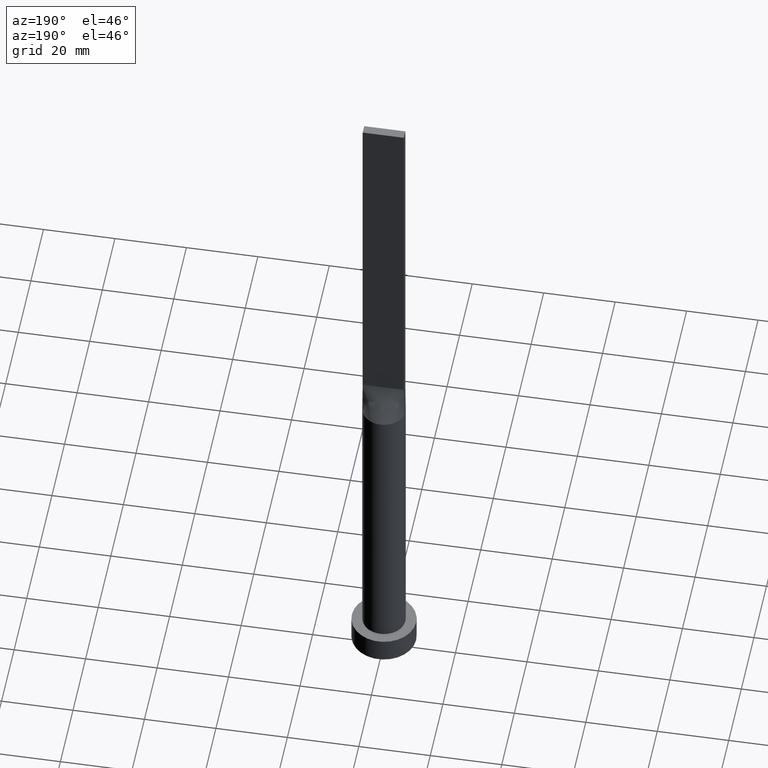
[diagram: clean part render]
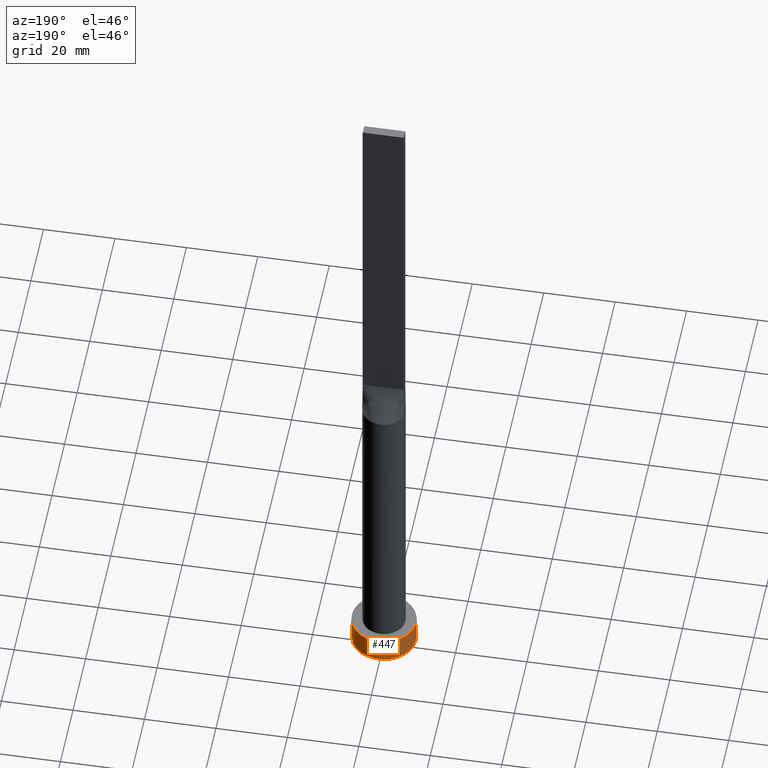
[diagram: same view with one face highlighted and labeled with its STEP entity id]
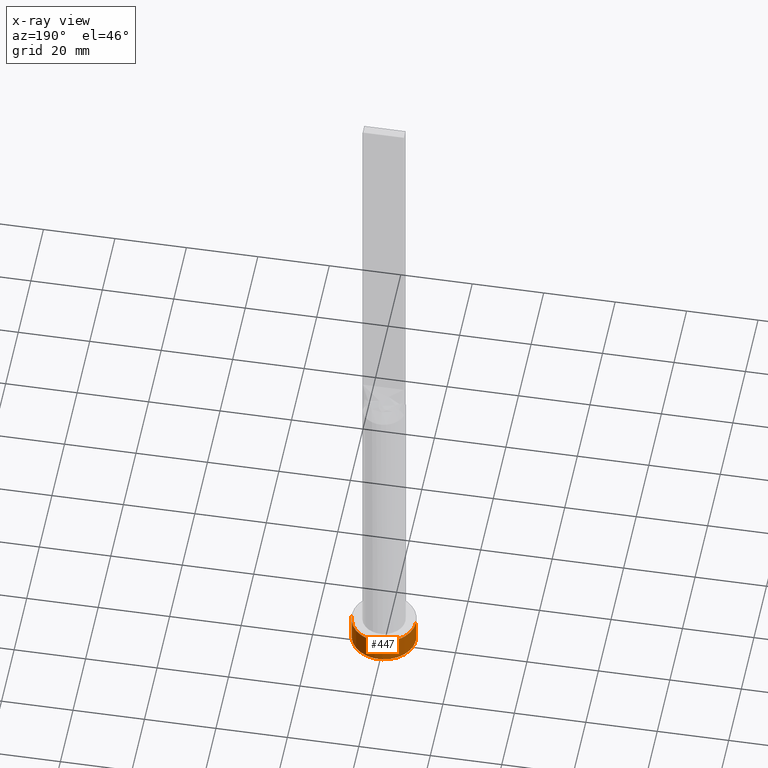
[diagram: x-ray of the same camera — body ghosted, the highlighted face saturated]
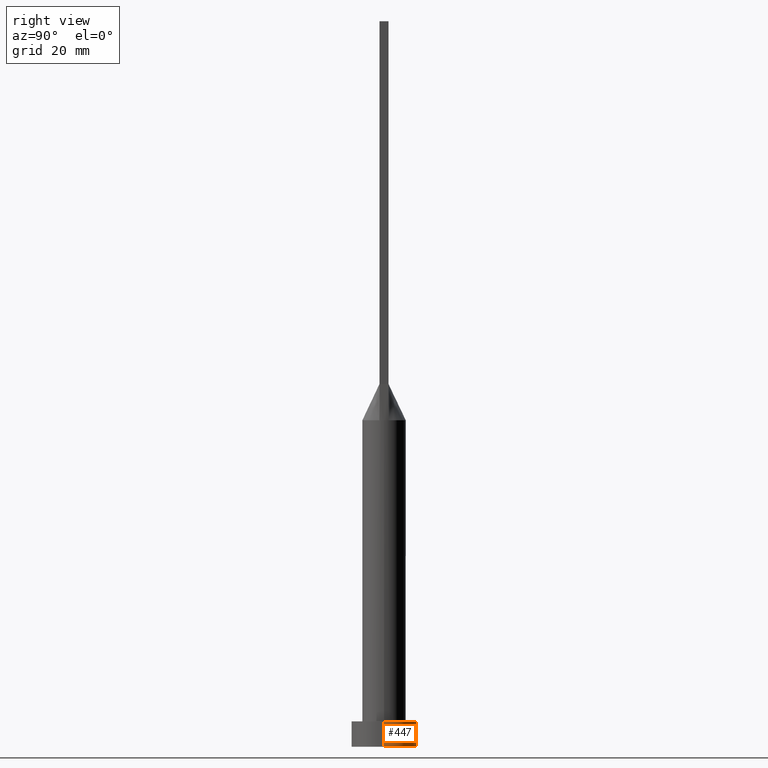
[diagram: same view with one face highlighted and labeled with its STEP entity id]
A machine part, auxiliary view. The second image highlights one B-rep face of the part: STEP entity #447.
The next image is the same camera in x-ray: the body ghosted, the highlighted face saturated — about 0% of this face is hidden behind the body in this view.
A second angle (right view) of the same face is appended — the face is thin or edge-on in the first view.
In plain terms, the highlighted cylindrical surface (edge-blend (fillet) strip) has radius 9 mm, axis along (-0, -0, -1).
Its self-contained STEP definition (entity closure, byte-faithful):
#13 = DIRECTION ( 'NONE',  ( -0.000000000000000000, -0.000000000000000000, -1.000000000000000000 ) ) ;
#22 = EDGE_CURVE ( 'NONE', #470, #445, #274, .T. ) ;
#75 = AXIS2_PLACEMENT_3D ( 'NONE', #375, #94, #460 ) ;
#77 = VERTEX_POINT ( 'NONE', #451 ) ;
#78 = LINE ( 'NONE', #97, #482 ) ;
#85 = AXIS2_PLACEMENT_3D ( 'NONE', #525, #297, #520 ) ;
#91 = CARTESIAN_POINT ( 'NONE',  ( 9.000000000000000000, 1.102182119232617714E-15, 0.000000000000000000 ) ) ;
#94 = DIRECTION ( 'NONE',  ( 0.000000000000000000, 0.000000000000000000, 1.000000000000000000 ) ) ;
#97 = CARTESIAN_POINT ( 'NONE',  ( -9.000000000000000000, 0.000000000000000000, 7.000000000000000000 ) ) ;
#99 = VERTEX_POINT ( 'NONE', #310 ) ;
#113 = CARTESIAN_POINT ( 'NONE',  ( 9.000000000000000000, 1.102182119232617714E-15, 7.000000000000000000 ) ) ;
#122 = EDGE_CURVE ( 'NONE', #77, #470, #205, .T. ) ;
#133 = DIRECTION ( 'NONE',  ( -0.000000000000000000, -0.000000000000000000, -1.000000000000000000 ) ) ;
#165 = VECTOR ( 'NONE', #13, 1000.000000000000000 ) ;
#182 = DIRECTION ( 'NONE',  ( -0.000000000000000000, -0.000000000000000000, -1.000000000000000000 ) ) ;
#200 = EDGE_CURVE ( 'NONE', #99, #445, #78, .T. ) ;
#205 = LINE ( 'NONE', #113, #165 ) ;
#231 = CYLINDRICAL_SURFACE ( 'NONE', #450, 9.000000000000000000 ) ;
#242 = CARTESIAN_POINT ( 'NONE',  ( 0.000000000000000000, 0.000000000000000000, 7.000000000000000000 ) ) ;
#263 = CIRCLE ( 'NONE', #85, 9.000000000000000000 ) ;
#274 = CIRCLE ( 'NONE', #75, 9.000000000000000000 ) ;
#281 = FACE_OUTER_BOUND ( 'NONE', #516, .T. ) ;
#284 = EDGE_CURVE ( 'NONE', #77, #99, #263, .T. ) ;
#297 = DIRECTION ( 'NONE',  ( 0.000000000000000000, 0.000000000000000000, 1.000000000000000000 ) ) ;
#310 = CARTESIAN_POINT ( 'NONE',  ( -9.000000000000000000, 0.000000000000000000, 7.000000000000000000 ) ) ;
#375 = CARTESIAN_POINT ( 'NONE',  ( 0.000000000000000000, 0.000000000000000000, 0.000000000000000000 ) ) ;
#405 = ORIENTED_EDGE ( 'NONE', *, *, #22, .T. ) ;
#445 = VERTEX_POINT ( 'NONE', #561 ) ;
#447 = ADVANCED_FACE ( 'NONE', ( #281 ), #231, .T. ) ;
#450 = AXIS2_PLACEMENT_3D ( 'NONE', #242, #133, #550 ) ;
#451 = CARTESIAN_POINT ( 'NONE',  ( 9.000000000000000000, 1.102182119232617714E-15, 7.000000000000000000 ) ) ;
#460 = DIRECTION ( 'NONE',  ( 1.000000000000000000, 0.000000000000000000, 0.000000000000000000 ) ) ;
#470 = VERTEX_POINT ( 'NONE', #91 ) ;
#482 = VECTOR ( 'NONE', #182, 1000.000000000000000 ) ;
#510 = ORIENTED_EDGE ( 'NONE', *, *, #284, .F. ) ;
#516 = EDGE_LOOP ( 'NONE', ( #510, #587, #405, #542 ) ) ;
#520 = DIRECTION ( 'NONE',  ( 1.000000000000000000, 0.000000000000000000, 0.000000000000000000 ) ) ;
#525 = CARTESIAN_POINT ( 'NONE',  ( 0.000000000000000000, 0.000000000000000000, 7.000000000000000000 ) ) ;
#542 = ORIENTED_EDGE ( 'NONE', *, *, #200, .F. ) ;
#550 = DIRECTION ( 'NONE',  ( -1.000000000000000000, 0.000000000000000000, 0.000000000000000000 ) ) ;
#561 = CARTESIAN_POINT ( 'NONE',  ( -9.000000000000000000, 0.000000000000000000, 0.000000000000000000 ) ) ;
#587 = ORIENTED_EDGE ( 'NONE', *, *, #122, .T. ) ;